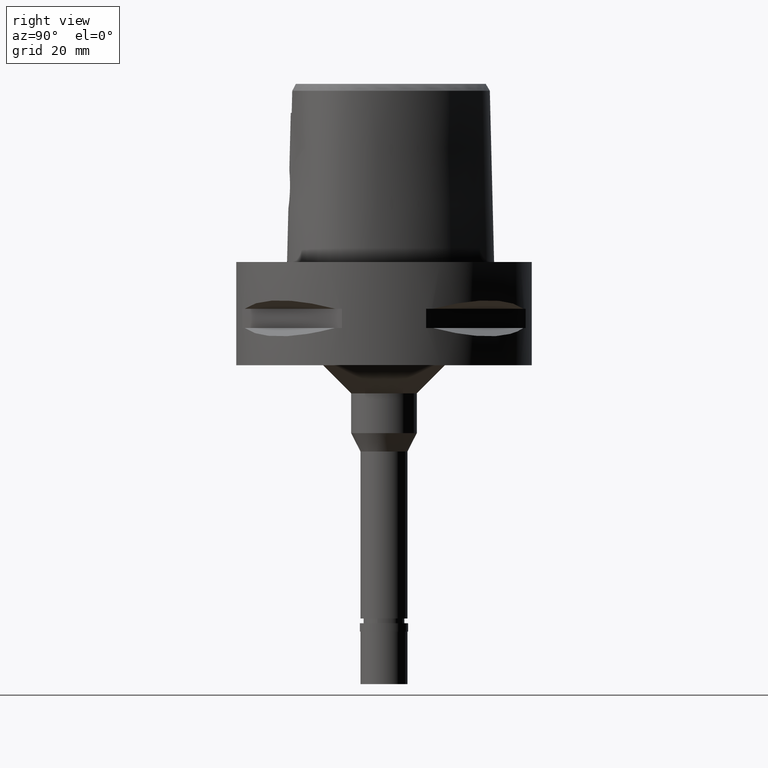
[diagram: clean part render]
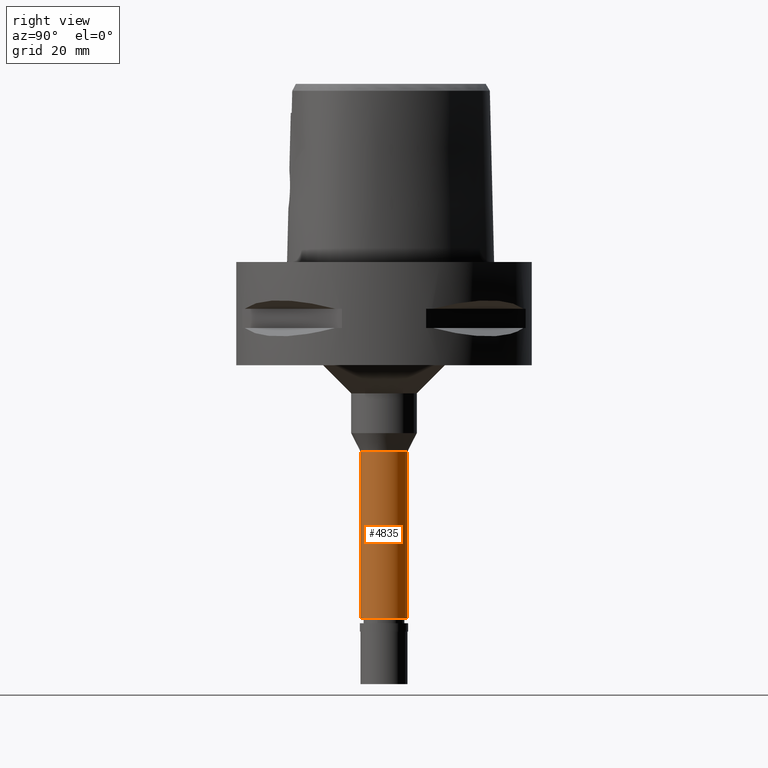
[diagram: same view with one face highlighted and labeled with its STEP entity id]
A machine part, right view. The second image highlights one B-rep face of the part: STEP entity #4835.
In plain terms, the highlighted cylindrical surface (edge-blend (fillet) strip) has radius 5 mm, axis along (0, 0, -1).
Its self-contained STEP definition (entity closure, byte-faithful):
#37 = AXIS2_PLACEMENT_3D ( 'NONE', #3894, #1263, #4655 ) ;
#70 = CYLINDRICAL_SURFACE ( 'NONE', #37, 5.000000000000000000 ) ;
#350 = DIRECTION ( 'NONE',  ( 0.0000000000000000000, 1.000000000000000000, 0.0000000000000000000 ) ) ;
#500 = DIRECTION ( 'NONE',  ( 0.0000000000000000000, -1.000000000000000000, 0.0000000000000000000 ) ) ;
#594 = CARTESIAN_POINT ( 'NONE',  ( 0.0000000000000000000, -4.999999999998999911, -40.39999999999999858 ) ) ;
#707 = DIRECTION ( 'NONE',  ( 0.0000000000000000000, 0.0000000000000000000, -1.000000000000000000 ) ) ;
#824 = FACE_OUTER_BOUND ( 'NONE', #4524, .T. ) ;
#1186 = CARTESIAN_POINT ( 'NONE',  ( 0.0000000000000000000, -5.000000000000000000, -76.00000000000000000 ) ) ;
#1226 = LINE ( 'NONE', #4299, #2884 ) ;
#1263 = DIRECTION ( 'NONE',  ( 0.0000000000000000000, 0.0000000000000000000, -1.000000000000000000 ) ) ;
#1454 = VERTEX_POINT ( 'NONE', #3603 ) ;
#1508 = VERTEX_POINT ( 'NONE', #594 ) ;
#1580 = CARTESIAN_POINT ( 'NONE',  ( 0.0000000000000000000, 0.0000000000000000000, -40.39999999999999858 ) ) ;
#1698 = EDGE_CURVE ( 'NONE', #1454, #1508, #4510, .T. ) ;
#1935 = ORIENTED_EDGE ( 'NONE', *, *, #1698, .T. ) ;
#2251 = CARTESIAN_POINT ( 'NONE',  ( 0.0000000000000000000, 4.999999999998999911, -40.39999999999999858 ) ) ;
#2350 = CARTESIAN_POINT ( 'NONE',  ( 0.0000000000000000000, 5.000000000000000000, -76.00000000000000000 ) ) ;
#2457 = EDGE_CURVE ( 'NONE', #1454, #2851, #4542, .T. ) ;
#2601 = AXIS2_PLACEMENT_3D ( 'NONE', #3969, #3681, #500 ) ;
#2744 = EDGE_CURVE ( 'NONE', #1508, #3536, #1226, .T. ) ;
#2851 = VERTEX_POINT ( 'NONE', #2350 ) ;
#2884 = VECTOR ( 'NONE', #4388, 1000.000000000000000 ) ;
#3377 = AXIS2_PLACEMENT_3D ( 'NONE', #1580, #707, #350 ) ;
#3536 = VERTEX_POINT ( 'NONE', #1186 ) ;
#3603 = CARTESIAN_POINT ( 'NONE',  ( 0.0000000000000000000, 4.999999999998999911, -40.39999999999999858 ) ) ;
#3666 = EDGE_CURVE ( 'NONE', #3536, #2851, #4802, .T. ) ;
#3681 = DIRECTION ( 'NONE',  ( 0.0000000000000000000, 0.0000000000000000000, 1.000000000000000000 ) ) ;
#3845 = ORIENTED_EDGE ( 'NONE', *, *, #2457, .F. ) ;
#3894 = CARTESIAN_POINT ( 'NONE',  ( 0.0000000000000000000, 1.277490308530999908E-14, 4.315000000000000391 ) ) ;
#3969 = CARTESIAN_POINT ( 'NONE',  ( 0.0000000000000000000, 1.277490308530999908E-14, -76.00000000000000000 ) ) ;
#4137 = ORIENTED_EDGE ( 'NONE', *, *, #2744, .T. ) ;
#4299 = CARTESIAN_POINT ( 'NONE',  ( 0.0000000000000000000, -4.999999999998999911, -40.39999999999999858 ) ) ;
#4347 = VECTOR ( 'NONE', #4646, 1000.000000000000000 ) ;
#4388 = DIRECTION ( 'NONE',  ( 0.0000000000000000000, -2.746866404746999784E-14, -1.000000000000000000 ) ) ;
#4510 = CIRCLE ( 'NONE', #3377, 4.999999999997999822 ) ;
#4524 = EDGE_LOOP ( 'NONE', ( #1935, #4137, #4777, #3845 ) ) ;
#4542 = LINE ( 'NONE', #2251, #4347 ) ;
#4646 = DIRECTION ( 'NONE',  ( 0.0000000000000000000, 2.759340820753999955E-14, -1.000000000000000000 ) ) ;
#4655 = DIRECTION ( 'NONE',  ( 0.0000000000000000000, -1.000000000000000000, 0.0000000000000000000 ) ) ;
#4777 = ORIENTED_EDGE ( 'NONE', *, *, #3666, .T. ) ;
#4802 = CIRCLE ( 'NONE', #2601, 5.000000000000000000 ) ;
#4835 = ADVANCED_FACE ( 'NONE', ( #824 ), #70, .T. ) ;